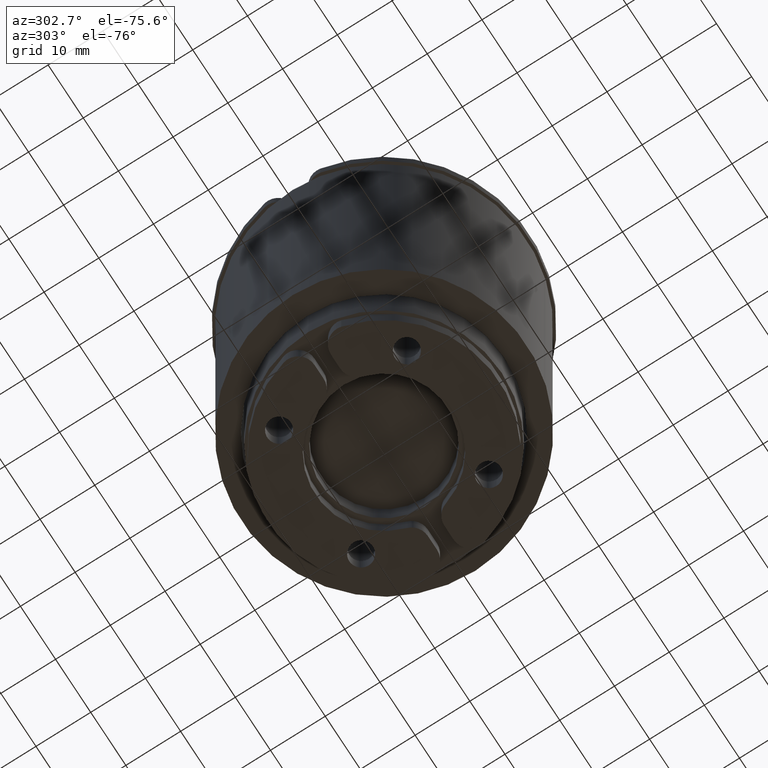
[diagram: clean part render]
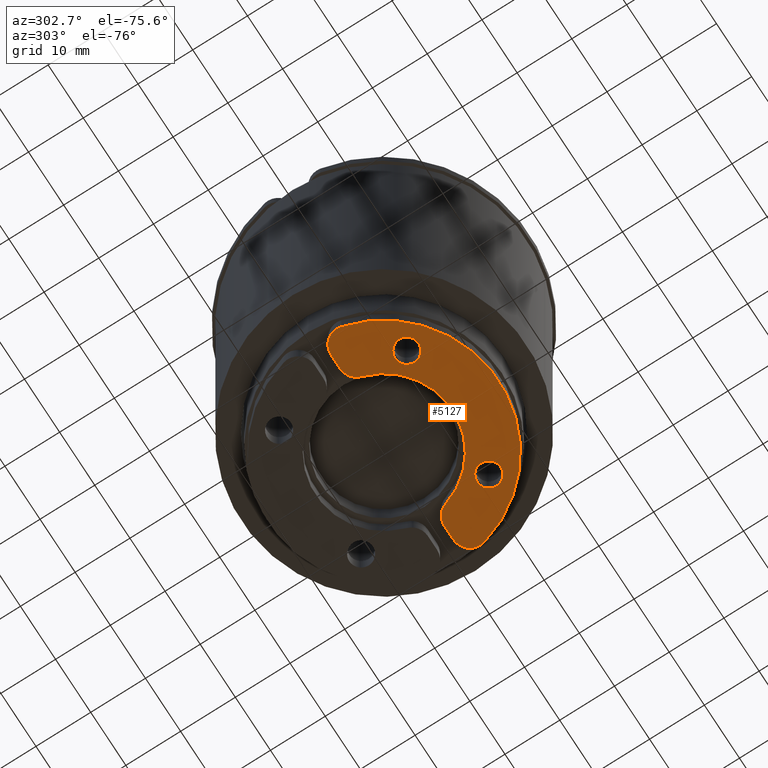
[diagram: same view with one face highlighted and labeled with its STEP entity id]
A machine part, auxiliary view. The second image highlights one B-rep face of the part: STEP entity #5127.
In plain terms, the highlighted planar face has unit normal (0, 0, 1).
Its self-contained STEP definition (entity closure, byte-faithful):
#4784=CARTESIAN_POINT('',(12.789843406339214,12.159429371069987,0.0));
#4785=VERTEX_POINT('',#4784);
#4786=CARTESIAN_POINT('',(10.622843406339214,12.159429371069987,0.0));
#4787=DIRECTION('',(0.0,0.0,1.0));
#4788=DIRECTION('',(-1.0,0.0,0.0));
#4789=AXIS2_PLACEMENT_3D('',#4786,#4787,#4788);
#4790=CIRCLE('',#4789,2.166999999999999);
#4791=EDGE_CURVE('',#4785,#4785,#4790,.T.);
#4812=CARTESIAN_POINT('',(36.124367185494791,12.159429371070898,0.0));
#4813=VERTEX_POINT('',#4812);
#4814=CARTESIAN_POINT('',(33.957367185494789,12.159429371070898,0.0));
#4815=DIRECTION('',(0.0,0.0,1.0));
#4816=DIRECTION('',(-1.0,0.0,0.0));
#4817=AXIS2_PLACEMENT_3D('',#4814,#4815,#4816);
#4818=CIRCLE('',#4817,2.166999999999999);
#4819=EDGE_CURVE('',#4813,#4813,#4818,.T.);
#4829=CARTESIAN_POINT('',(39.718530353850554,22.326691260648186,0.0));
#4830=VERTEX_POINT('',#4829);
#4831=CARTESIAN_POINT('',(42.623267863506172,18.576691260648349,0.0));
#4832=VERTEX_POINT('',#4831);
#4833=CARTESIAN_POINT('',(39.718530353850554,19.32669126064819,0.0));
#4834=DIRECTION('',(0.0,0.0,-1.0));
#4835=DIRECTION('',(-0.968245836551869,0.249999999999945,0.0));
#4836=AXIS2_PLACEMENT_3D('',#4833,#4834,#4835);
#4837=CIRCLE('',#4836,3.0);
#4838=EDGE_CURVE('',#4830,#4832,#4837,.T.);
#4871=CARTESIAN_POINT('',(1.956942728328258,18.576691260648367,0.0));
#4872=VERTEX_POINT('',#4871);
#4873=CARTESIAN_POINT('',(22.290105295917218,23.826691260648346,0.0));
#4874=DIRECTION('',(0.0,0.0,-1.0));
#4875=DIRECTION('',(0.968245836551855,0.249999999999999,0.0));
#4876=AXIS2_PLACEMENT_3D('',#4873,#4874,#4875);
#4877=CIRCLE('',#4876,21.000000000000004);
#4878=EDGE_CURVE('',#4832,#4872,#4877,.T.);
#4904=CARTESIAN_POINT('',(4.861680237983833,22.326691260648172,0.0));
#4905=VERTEX_POINT('',#4904);
#4906=CARTESIAN_POINT('',(4.861680237983833,19.326691260648172,0.0));
#4907=DIRECTION('',(0.0,0.0,-1.0));
#4908=DIRECTION('',(0.0,-1.0,0.0));
#4909=AXIS2_PLACEMENT_3D('',#4906,#4907,#4908);
#4910=CIRCLE('',#4909,3.0);
#4911=EDGE_CURVE('',#4872,#4905,#4910,.T.);
#4937=CARTESIAN_POINT('',(7.457708321725947,22.326691260648172,0.0));
#4938=VERTEX_POINT('',#4937);
#4939=CARTESIAN_POINT('',(4.861680237983833,22.326691260648172,0.0));
#4940=DIRECTION('',(1.0,0.0,0.0));
#4941=VECTOR('',#4940,2.596028083742112);
#4942=LINE('',#4939,#4941);
#4943=EDGE_CURVE('',#4905,#4938,#4942,.T.);
#4968=CARTESIAN_POINT('',(10.328494832859764,20.197659002583595,0.0));
#4969=VERTEX_POINT('',#4968);
#4970=CARTESIAN_POINT('',(7.457708321725947,19.326691260648172,0.0));
#4971=DIRECTION('',(0.0,0.0,-1.0));
#4972=DIRECTION('',(-0.956928837044608,-0.290322580645141,0.0));
#4973=AXIS2_PLACEMENT_3D('',#4970,#4971,#4972);
#4974=CIRCLE('',#4973,3.0);
#4975=EDGE_CURVE('',#4938,#4969,#4974,.T.);
#5001=CARTESIAN_POINT('',(34.251715758974697,20.197659002583727,0.0));
#5002=VERTEX_POINT('',#5001);
#5003=CARTESIAN_POINT('',(22.290105295917218,23.826691260648346,0.0));
#5004=DIRECTION('',(0.0,0.0,1.0));
#5005=DIRECTION('',(-0.956928837044596,-0.29032258064518,0.0));
#5006=AXIS2_PLACEMENT_3D('',#5003,#5004,#5005);
#5007=CIRCLE('',#5006,12.499999999999998);
#5008=EDGE_CURVE('',#4969,#5002,#5007,.T.);
#5034=CARTESIAN_POINT('',(37.122502270108484,22.326691260648186,0.0));
#5035=VERTEX_POINT('',#5034);
#5036=CARTESIAN_POINT('',(37.122502270108484,19.32669126064819,0.0));
#5037=DIRECTION('',(0.0,0.0,-1.0));
#5038=DIRECTION('',(0.0,-1.0,0.0));
#5039=AXIS2_PLACEMENT_3D('',#5036,#5037,#5038);
#5040=CIRCLE('',#5039,3.0);
#5041=EDGE_CURVE('',#5002,#5035,#5040,.T.);
#5067=CARTESIAN_POINT('',(37.122502270108484,22.326691260648186,0.0));
#5068=DIRECTION('',(1.0,0.0,0.0));
#5069=VECTOR('',#5068,2.59602808374207);
#5070=LINE('',#5067,#5069);
#5071=EDGE_CURVE('',#5035,#4830,#5070,.T.);
#5106=CARTESIAN_POINT('',(22.290105295917208,13.076789548087906,0.0));
#5107=DIRECTION('',(0.0,0.0,1.0));
#5108=DIRECTION('',(1.0,0.0,0.0));
#5109=AXIS2_PLACEMENT_3D('',#5106,#5107,#5108);
#5110=PLANE('',#5109);
#5111=ORIENTED_EDGE('',*,*,#5071,.T.);
#5112=ORIENTED_EDGE('',*,*,#4838,.T.);
#5113=ORIENTED_EDGE('',*,*,#4878,.T.);
#5114=ORIENTED_EDGE('',*,*,#4911,.T.);
#5115=ORIENTED_EDGE('',*,*,#4943,.T.);
#5116=ORIENTED_EDGE('',*,*,#4975,.T.);
#5117=ORIENTED_EDGE('',*,*,#5008,.T.);
#5118=ORIENTED_EDGE('',*,*,#5041,.T.);
#5119=EDGE_LOOP('',(#5111,#5112,#5113,#5114,#5115,#5116,#5117,#5118));
#5120=FACE_OUTER_BOUND('',#5119,.T.);
#5121=ORIENTED_EDGE('',*,*,#4791,.T.);
#5122=EDGE_LOOP('',(#5121));
#5123=FACE_BOUND('',#5122,.T.);
#5124=ORIENTED_EDGE('',*,*,#4819,.T.);
#5125=EDGE_LOOP('',(#5124));
#5126=FACE_BOUND('',#5125,.T.);
#5127=ADVANCED_FACE('',(#5120,#5123,#5126),#5110,.F.);